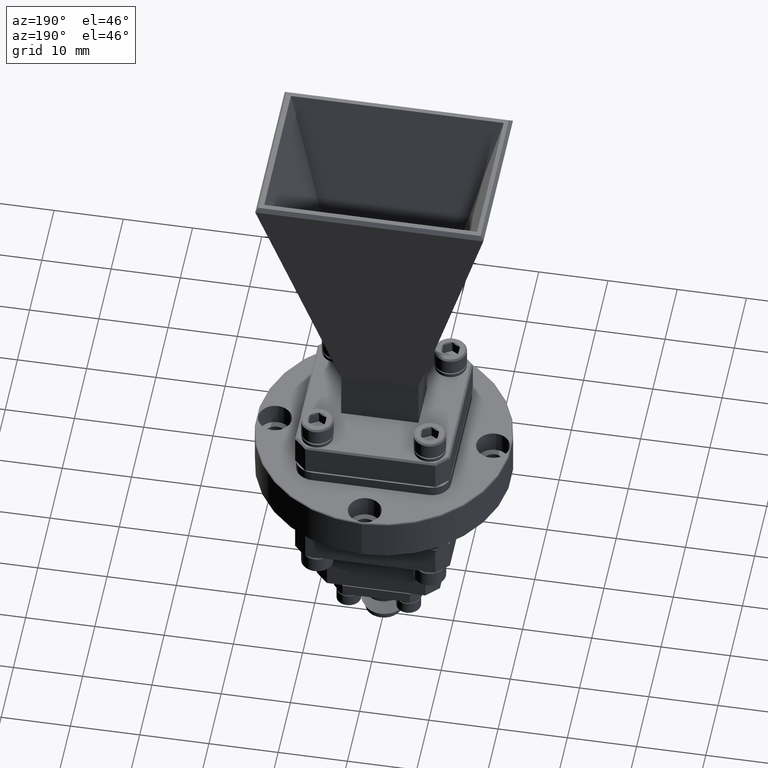
[diagram: clean part render]
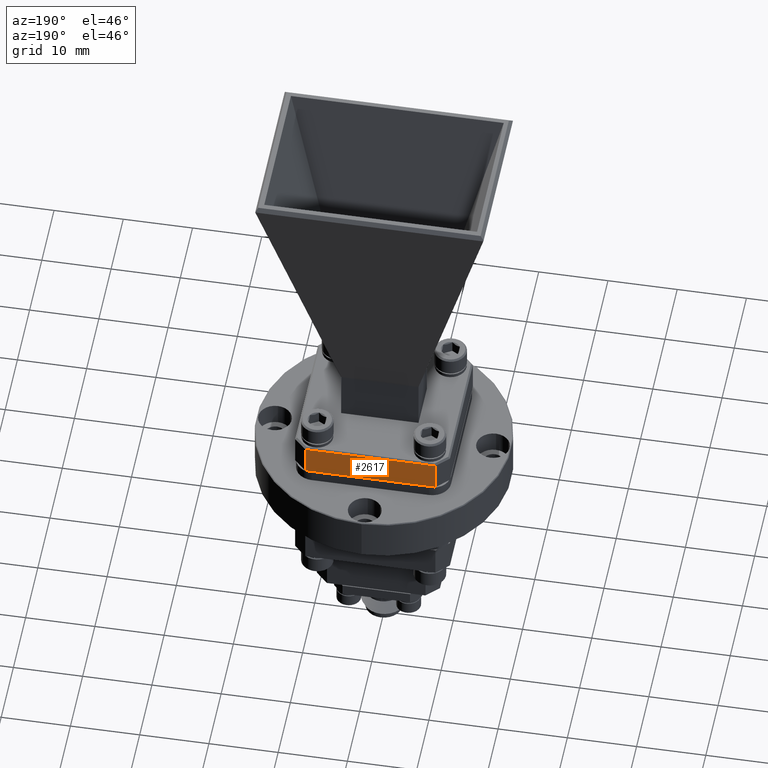
[diagram: same view with one face highlighted and labeled with its STEP entity id]
A machine part, auxiliary view. The second image highlights one B-rep face of the part: STEP entity #2617.
In plain terms, the highlighted planar face has unit normal (0, -1, -0).
Its self-contained STEP definition (entity closure, byte-faithful):
#144 = VECTOR ( 'NONE', #12578, 39.37007874015748100 ) ;
#214 = VECTOR ( 'NONE', #2233, 39.37007874015748100 ) ;
#756 = EDGE_CURVE ( 'NONE', #3409, #6820, #9845, .T. ) ;
#963 = ORIENTED_EDGE ( 'NONE', *, *, #9704, .T. ) ;
#1618 = VECTOR ( 'NONE', #17371, 39.37007874015748100 ) ;
#1633 = PLANE ( 'NONE',  #13373 ) ;
#2233 = DIRECTION ( 'NONE',  ( 0.0000000000000000000, 0.0000000000000000000, -1.000000000000000000 ) ) ;
#2617 = ADVANCED_FACE ( 'NONE', ( #18727 ), #1633, .F. ) ;
#3409 = VERTEX_POINT ( 'NONE', #19070 ) ;
#3429 = CARTESIAN_POINT ( 'NONE',  ( -0.3699999999999998300, 0.4399999999999999500, 0.6899999999999996100 ) ) ;
#3754 = CARTESIAN_POINT ( 'NONE',  ( 0.3700000000000001100, 0.4400000000000001100, 0.6799999999999997200 ) ) ;
#3878 = CARTESIAN_POINT ( 'NONE',  ( -0.3699999999999998300, 0.4399999999999999500, 0.6899999999999996100 ) ) ;
#6820 = VERTEX_POINT ( 'NONE', #19717 ) ;
#7103 = VERTEX_POINT ( 'NONE', #16450 ) ;
#7132 = VERTEX_POINT ( 'NONE', #3878 ) ;
#7271 = ORIENTED_EDGE ( 'NONE', *, *, #18503, .T. ) ;
#9042 = ORIENTED_EDGE ( 'NONE', *, *, #756, .T. ) ;
#9704 = EDGE_CURVE ( 'NONE', #6820, #7103, #17761, .T. ) ;
#9792 = VECTOR ( 'NONE', #9905, 39.37007874015748100 ) ;
#9845 = LINE ( 'NONE', #18887, #1618 ) ;
#9905 = DIRECTION ( 'NONE',  ( 0.0000000000000000000, 0.0000000000000000000, 1.000000000000000000 ) ) ;
#10100 = EDGE_LOOP ( 'NONE', ( #19083, #9042, #963, #7271 ) ) ;
#11829 = LINE ( 'NONE', #3429, #144 ) ;
#11839 = EDGE_CURVE ( 'NONE', #7132, #3409, #15895, .T. ) ;
#12358 = CARTESIAN_POINT ( 'NONE',  ( -0.4399999999999998900, 0.4399999999999999500, 0.6799999999999997200 ) ) ;
#12578 = DIRECTION ( 'NONE',  ( -1.000000000000000000, -1.223371201526378100E-016, 0.0000000000000000000 ) ) ;
#13373 = AXIS2_PLACEMENT_3D ( 'NONE', #12358, #17091, #18725 ) ;
#15895 = LINE ( 'NONE', #19415, #9792 ) ;
#16450 = CARTESIAN_POINT ( 'NONE',  ( 0.3700000000000001100, 0.4400000000000001100, 0.6899999999999996100 ) ) ;
#17091 = DIRECTION ( 'NONE',  ( 1.223371201526378100E-016, -1.000000000000000000, -0.0000000000000000000 ) ) ;
#17371 = DIRECTION ( 'NONE',  ( 1.000000000000000000, 1.223371201526378100E-016, 0.0000000000000000000 ) ) ;
#17761 = LINE ( 'NONE', #3754, #214 ) ;
#18503 = EDGE_CURVE ( 'NONE', #7103, #7132, #11829, .T. ) ;
#18725 = DIRECTION ( 'NONE',  ( -1.000000000000000000, -1.223371201526378100E-016, 0.0000000000000000000 ) ) ;
#18727 = FACE_OUTER_BOUND ( 'NONE', #10100, .T. ) ;
#18887 = CARTESIAN_POINT ( 'NONE',  ( -0.4399999999999998900, 0.4399999999999999500, 0.8599999999999998800 ) ) ;
#19070 = CARTESIAN_POINT ( 'NONE',  ( -0.3699999999999998300, 0.4399999999999999500, 0.8599999999999998800 ) ) ;
#19083 = ORIENTED_EDGE ( 'NONE', *, *, #11839, .T. ) ;
#19415 = CARTESIAN_POINT ( 'NONE',  ( -0.3699999999999998300, 0.4399999999999999500, 0.6799999999999997200 ) ) ;
#19717 = CARTESIAN_POINT ( 'NONE',  ( 0.3700000000000001100, 0.4400000000000001100, 0.8599999999999998800 ) ) ;